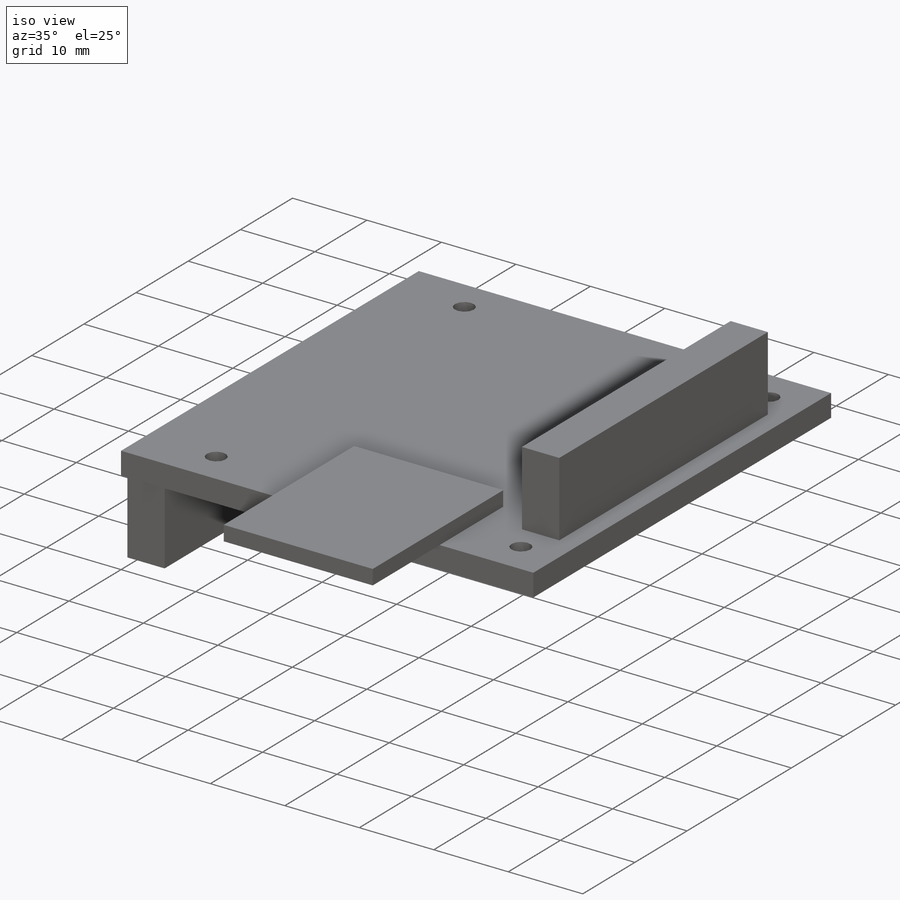
[diagram: iso view]
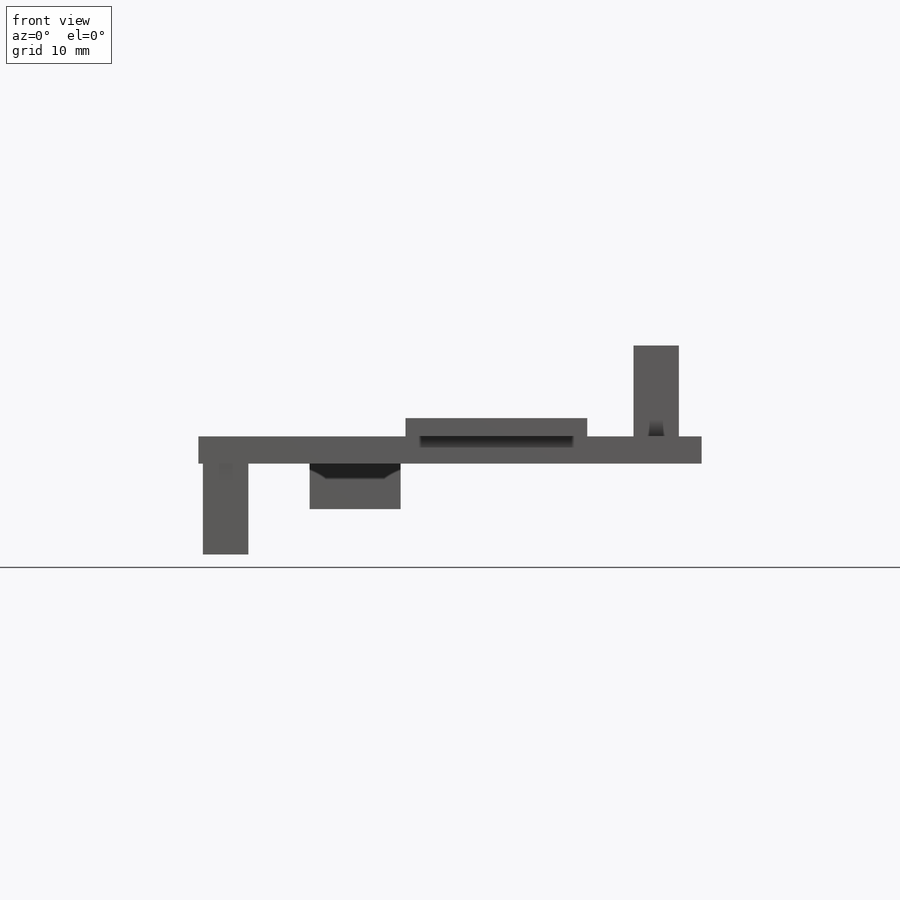
[diagram: front view]
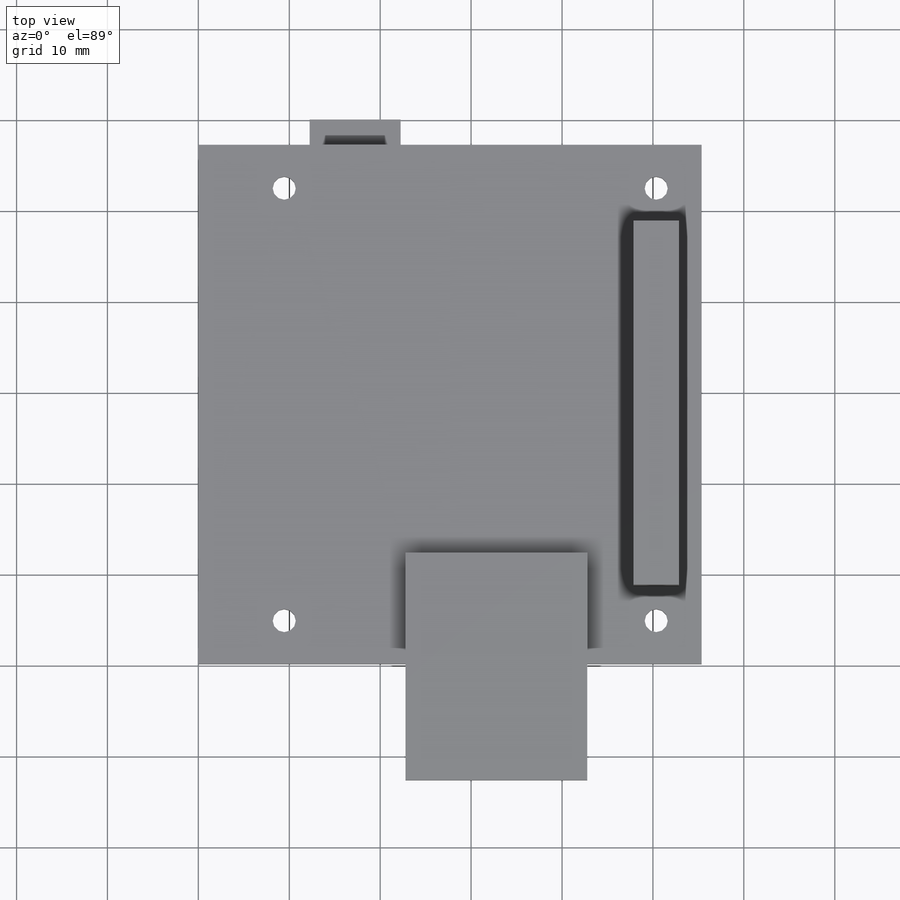
[diagram: top view]
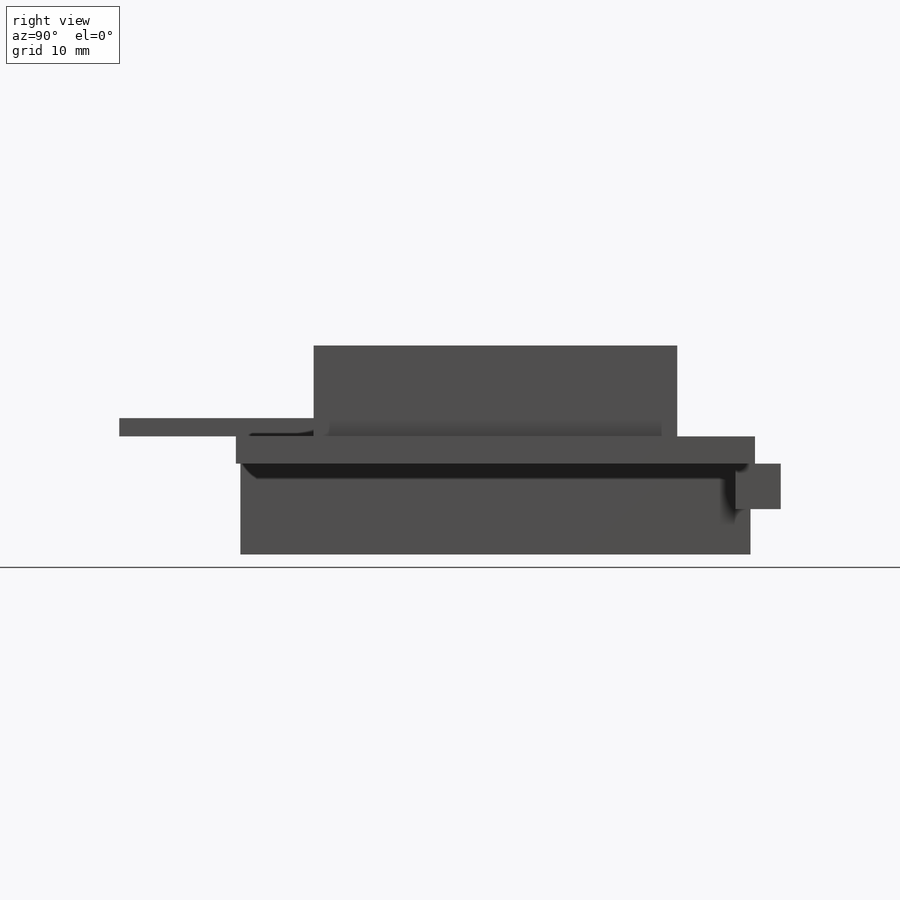
[diagram: right view]
SOLIDWORKS PART (.sldprt)
format: sldprt  version: not decoded by parser v0  size: 187,904 bytes
history: native  units: mm
features: sketch x5, extrude x5, plane x3, material x1 (+9 scaffold rows collapsed)
feature tree (23):
  scaffold x9  (default folders/planes/origin — collapsed)
  material  "Material <not specified>"
  plane  "Face"
  plane  "Dessus"
  plane  "Droite"
  sketch  "Esquisse1"  dims[D3=2.55mm D1=55.36mm D2=57.1mm D4=47.57mm D5=40.91mm D6=5.0mm D7=5.0mm]
  extrude  "Extrusion1"  Depth=3mm
  sketch  "Esquisse2"  dims[D1=5.0mm D2=40.0mm]
  extrude  "Extrusion2"  Depth=10mm
  sketch  "Esquisse3"  dims[D1=20.0mm D2=25.0mm]
  extrude  "Extrusion3"  Depth=2mm
  sketch  "Esquisse4"  dims[D1=5.0mm D2=0.5mm D3=0.5mm D4=0.5mm]
  extrude  "Extrusion4"  Depth=10mm
  sketch  "Esquisse5"  dims[D1=10.0mm D2=5.0mm D3=10.0mm]
  extrude  "Extrusion5"  Depth=5mm
decode coverage: 10 of 10 modeling features carry decoded parameters
note: suppression state not decoded; provenance and decode notes live in map.json
